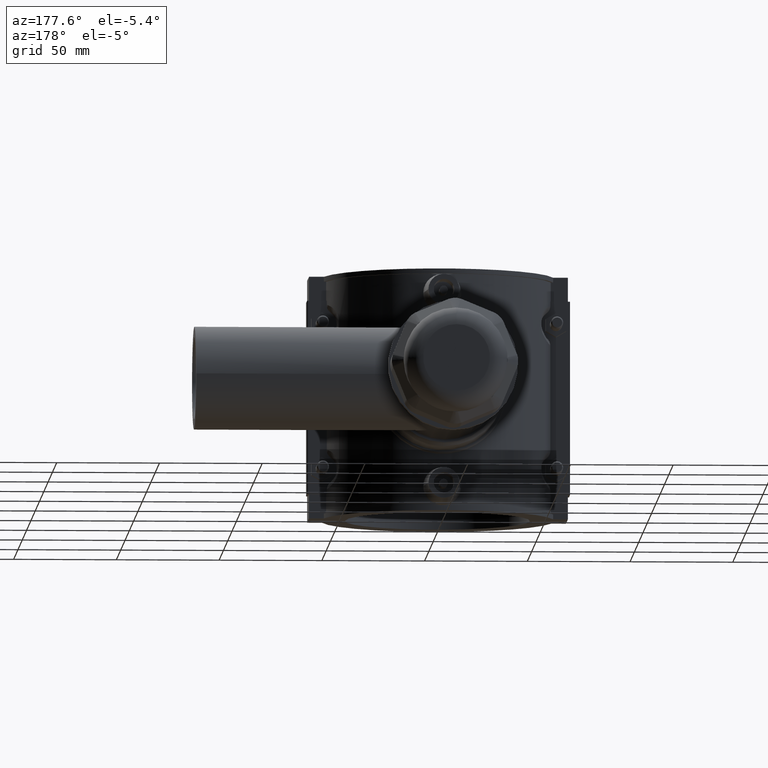
[diagram: clean part render]
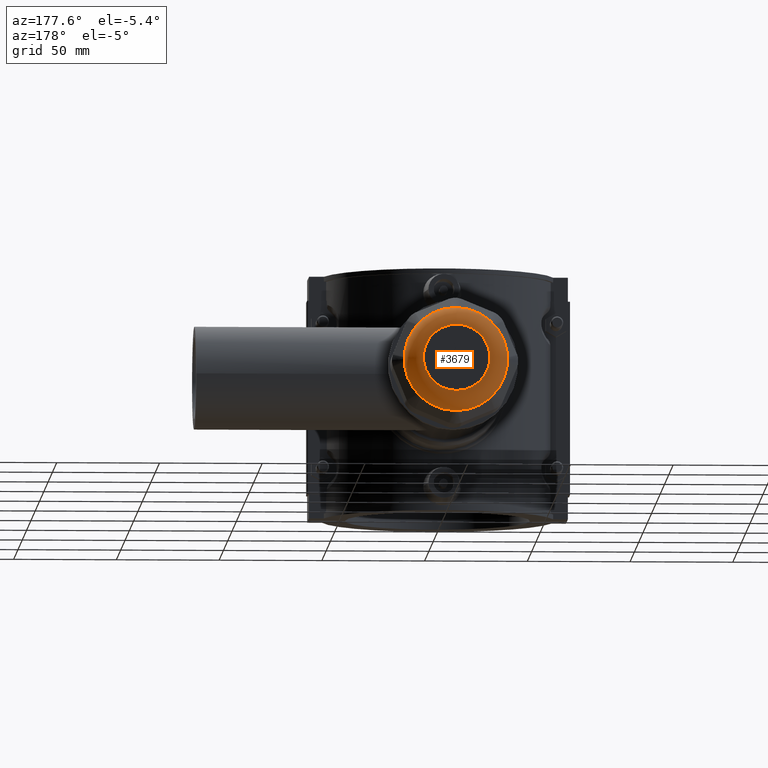
[diagram: same view with one face highlighted and labeled with its STEP entity id]
A machine part, auxiliary view. The second image highlights one B-rep face of the part: STEP entity #3679.
In plain terms, the highlighted toroidal blend (fillet) surface has major radius 16.2 mm and minor (blend) radius 9 mm.
Its self-contained STEP definition (entity closure, byte-faithful):
#15=TOROIDAL_SURFACE('',#3934,16.2,9.);
#674=FACE_BOUND('',#1172,.T.);
#935=FACE_OUTER_BOUND('',#1171,.T.);
#1171=EDGE_LOOP('',(#2608));
#1172=EDGE_LOOP('',(#2609));
#1427=CIRCLE('',#3935,25.2);
#1428=CIRCLE('',#3936,16.2);
#1605=VERTEX_POINT('',#6058);
#1606=VERTEX_POINT('',#6060);
#2006=EDGE_CURVE('',#1605,#1605,#1427,.T.);
#2007=EDGE_CURVE('',#1606,#1606,#1428,.T.);
#2608=ORIENTED_EDGE('',*,*,#2006,.T.);
#2609=ORIENTED_EDGE('',*,*,#2007,.T.);
#3679=ADVANCED_FACE('',(#935,#674),#15,.T.);
#3934=AXIS2_PLACEMENT_3D('',#6057,#4412,#4413);
#3935=AXIS2_PLACEMENT_3D('',#6059,#4414,#4415);
#3936=AXIS2_PLACEMENT_3D('',#6061,#4416,#4417);
#4412=DIRECTION('center_axis',(0.,1.,3.06161699786838E-16));
#4413=DIRECTION('ref_axis',(0.,0.,1.));
#4414=DIRECTION('center_axis',(0.,1.,3.06161699786838E-16));
#4415=DIRECTION('ref_axis',(6.12323399573677E-17,3.08395284618099E-16,-1.));
#4416=DIRECTION('center_axis',(0.,-1.,-3.06161699786838E-16));
#4417=DIRECTION('ref_axis',(6.12323399573676E-17,3.06161699786838E-16,-1.));
#6057=CARTESIAN_POINT('Origin',(0.,213.,5.14351655641889E-14));
#6058=CARTESIAN_POINT('',(1.54305496692567E-15,213.,25.2000000000001));
#6059=CARTESIAN_POINT('Origin',(0.,213.,5.14351655641889E-14));
#6060=CARTESIAN_POINT('',(-2.97589172192807E-15,222.,16.2000000000001));
#6061=CARTESIAN_POINT('Origin',(0.,222.,5.41906208622704E-14));